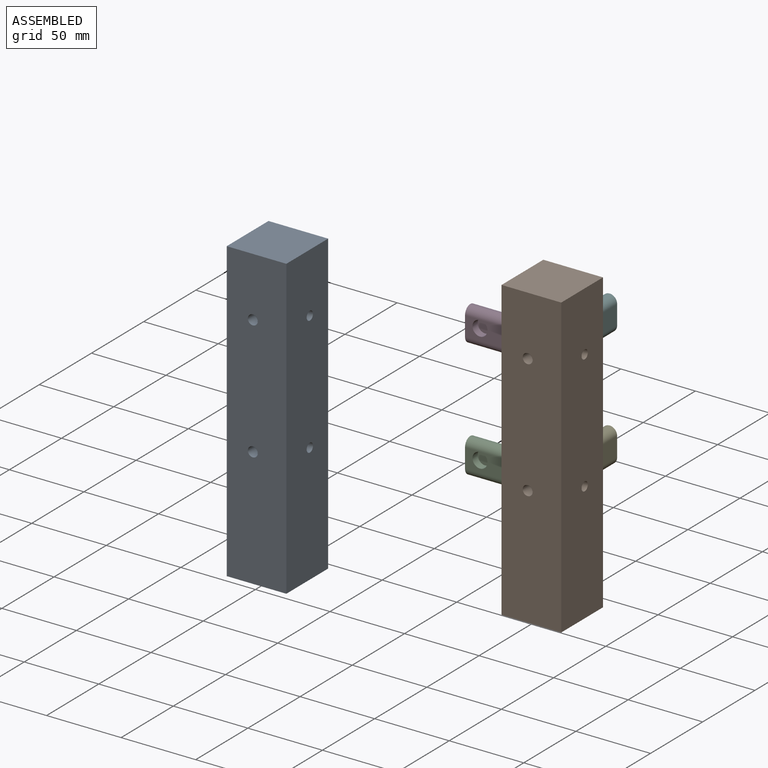
[diagram: assembled view]
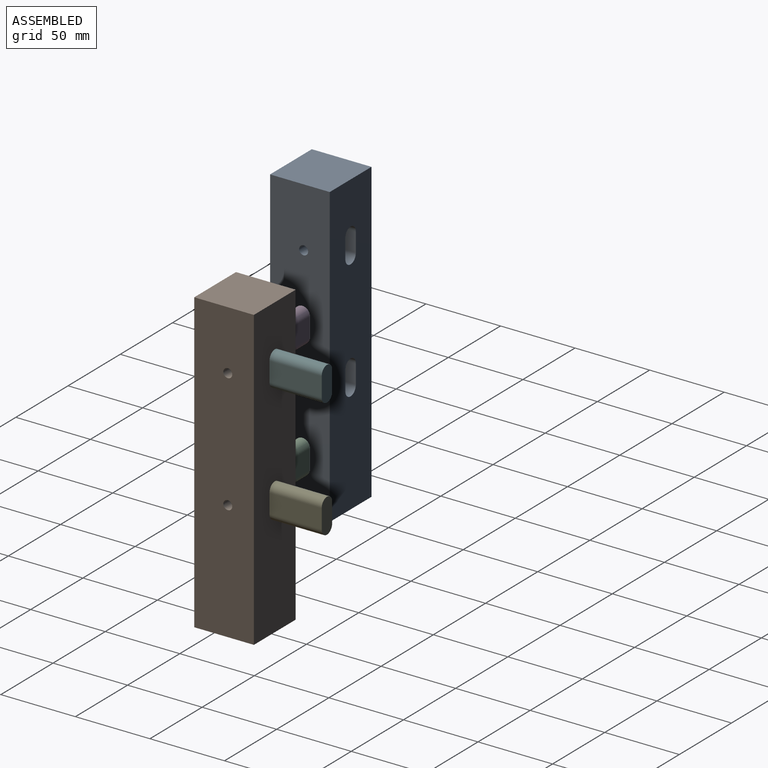
[diagram: assembled view, second angle]
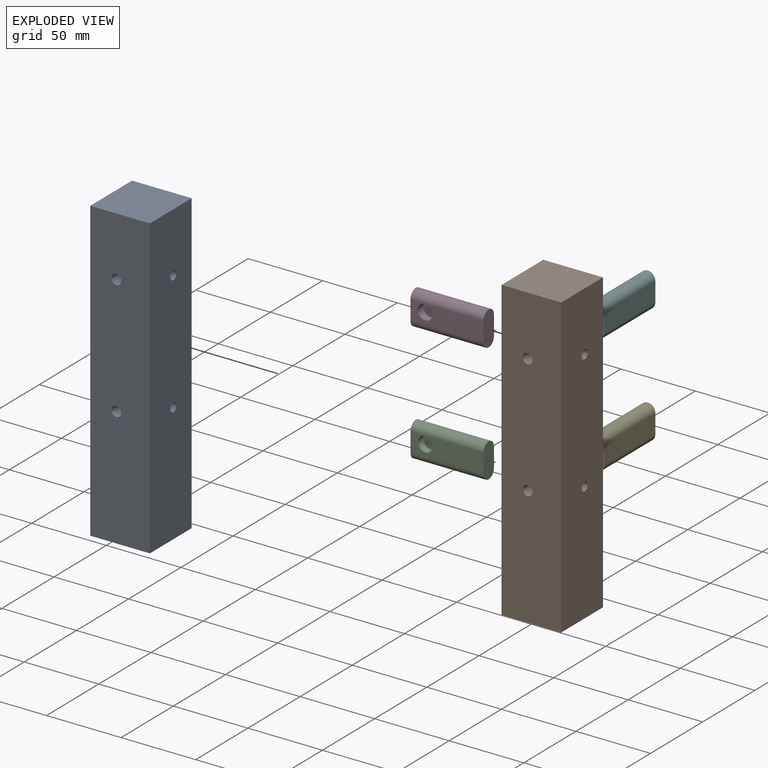
[diagram: exploded view]
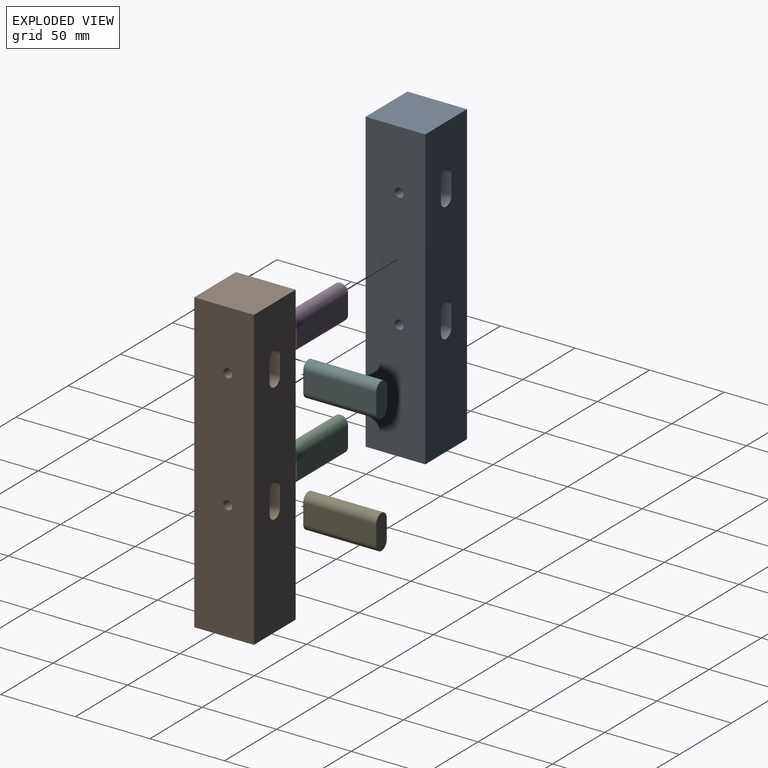
[diagram: exploded view, second angle]
ASSEMBLY  parts=5 mates=4
PART A: 34 faces, bbox 40x40x200 mm
  f0: plane 200x40mm, normal (-1,0,0), area 7582.9mm2, adj f1,f2,f3,f4,f24,f25,f26,f27
  f1: plane 200x40mm, normal (0,1,0), area 7582.9mm2, adj f0,f2,f4,f5,f14,f15,f16,f17
  f2: plane 40x40mm, normal (0,0,1), area 1600mm2, adj f0,f1,f3,f5
  f3: plane 200x40mm, normal (0,-1,0), area 7930.8mm2, adj f0,f2,f4,f5,f7,f9
  f4: plane 40x40mm, normal (0,0,-1), area 1600mm2, adj f0,f1,f3,f5
  f5: plane 200x40mm, normal (1,0,0), area 7943.5mm2, adj f1,f2,f3,f4,f11,f13
  f6: plane 6.64x6.64mm, normal (0,-1,0), area 34.6mm2, adj f7
  f7: cylinder r=3.32mm len=20mm, axis (0,-1,0), area 417.1mm2, adj f3,f6
  f8: plane 6.64x6.64mm, normal (0,-1,0), area 34.6mm2, adj f9
  f9: cylinder r=3.32mm len=20mm, axis (0,-1,0), area 417.1mm2, adj f3,f8
  f10: plane 6x6mm, normal (1,0,0), area 28.3mm2, adj f11
  f11: cylinder r=3mm len=16mm, axis (1,0,0), area 301.6mm2, adj f5,f10
  f12: plane 6x6mm, normal (1,0,0), area 28.3mm2, adj f13
  f13: cylinder r=3mm len=16mm, axis (1,0,0), area 301.6mm2, adj f5,f12
  f14: plane 14x13mm, normal (1,0,0), area 182mm2, adj f1,f15,f17,f18
  f15: cylinder r=5mm len=14mm, axis (0,-1,0), area 219.9mm2, adj f1,f14,f16,f18
  f16: plane 14x13mm, normal (-1,0,0), area 182mm2, adj f1,f15,f17,f18
  f17: cylinder r=5mm len=14mm, axis (0,-1,0), area 219.9mm2, adj f1,f14,f16,f18
  f18: plane 23x10mm, normal (0,1,0), area 208.5mm2, adj f14,f15,f16,f17
  f19: plane 14x13mm, normal (1,0,0), area 182mm2, adj f1,f20,f22,f23
  f20: cylinder r=5mm len=14mm, axis (0,-1,0), area 219.9mm2, adj f1,f19,f21,f23
  f21: plane 14x13mm, normal (-1,0,0), area 182mm2, adj f1,f20,f22,f23
  f22: cylinder r=5mm len=14mm, axis (0,-1,0), area 219.9mm2, adj f1,f19,f21,f23
  f23: plane 23x10mm, normal (0,1,0), area 208.5mm2, adj f19,f20,f21,f22
  f24: plane 14x13mm, normal (0,1,0), area 182mm2, adj f0,f25,f27,f28
  f25: cylinder r=5mm len=14mm, axis (1,0,0), area 219.9mm2, adj f0,f24,f26,f28
  f26: plane 14x13mm, normal (0,-1,0), area 182mm2, adj f0,f25,f27,f28
  f27: cylinder r=5mm len=14mm, axis (1,0,0), area 219.9mm2, adj f0,f24,f26,f28
  f28: plane 23x10mm, normal (-1,0,0), area 208.5mm2, adj f24,f25,f26,f27
  f29: plane 14x13mm, normal (0,1,0), area 182mm2, adj f0,f30,f32,f33
  f30: cylinder r=5mm len=14mm, axis (1,0,0), area 219.9mm2, adj f0,f29,f31,f33
  f31: plane 14x13mm, normal (0,-1,0), area 182mm2, adj f0,f30,f32,f33
  f32: cylinder r=5mm len=14mm, axis (1,0,0), area 219.9mm2, adj f0,f29,f31,f33
  f33: plane 23x10mm, normal (-1,0,0), area 208.5mm2, adj f29,f30,f31,f32
PART B: 8 faces, bbox 49x10x23 mm
  f0: plane 49x13mm, normal (0,-1,0), area 558.5mm2, adj f1,f3,f4,f5,f7
  f1: cylinder r=5mm len=49mm, axis (1,0,0), area 769.7mm2, adj f0,f2,f4,f5
  f2: plane 49x13mm, normal (0,1,0), area 637mm2, adj f1,f3,f4,f5
  f3: cylinder r=5mm len=49mm, axis (1,0,0), area 769.7mm2, adj f0,f2,f4,f5
  f4: plane 23x10mm, normal (-1,0,0), area 208.5mm2, adj f0,f1,f2,f3
  f5: plane 23x10mm, normal (1,0,0), area 208.5mm2, adj f0,f1,f2,f3
  f6: plane 10x10mm, normal (0,-1,0), area 78.5mm2, adj f7
  f7: cylinder r=5mm len=10mm, axis (0,-1,0), area 157.1mm2, adj f0,f6
PART C: same geometry as B
PART D: same geometry as B
PART E: same geometry as B
PLACE A t=(147.59,52.47,-4.07)mm
PLACE B t=(147.59,52.47,-4.07)mm
PLACE C t=(147.59,52.47,75.93)mm
PLACE D rot(axis=(0,0,-1),90deg) t=(95.38,-79.73,-4.07)mm
PLACE E rot(axis=(0,0,-1),90deg) t=(95.38,-79.73,75.93)mm
MATE fastened B.f5 <-> A.f33  axis (1,0,0) through (49.38,12.47,18.61)mm
MATE fastened E.f5 <-> A.f18  axis (0,-1,0) through (55.38,18.47,98.61)mm
MATE fastened C.f5 <-> A.f28  axis (1,0,0) through (49.38,12.47,98.61)mm
MATE fastened D.f5 <-> A.f23  axis (0,-1,0) through (55.38,18.47,18.61)mm
